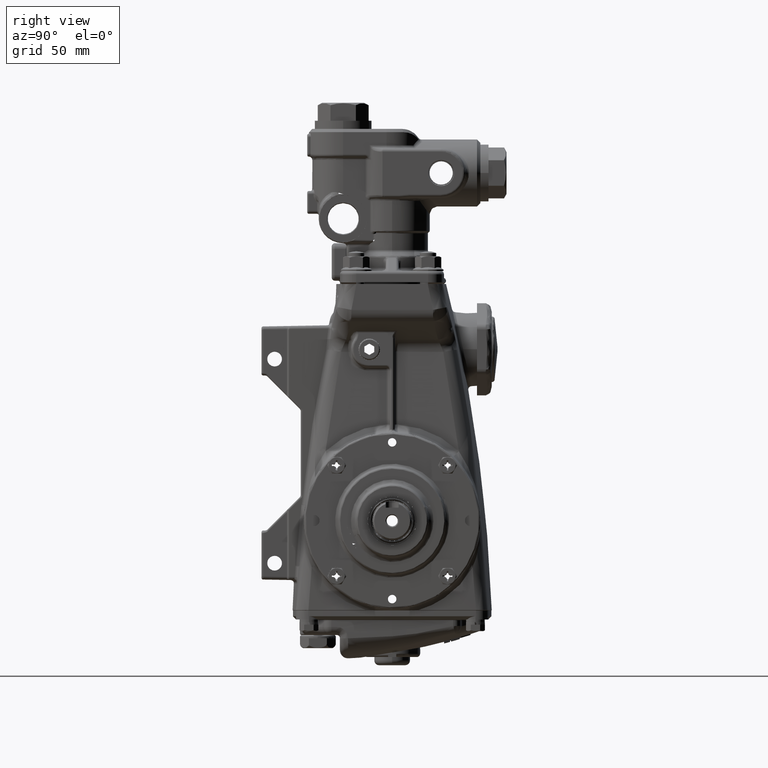
[diagram: clean part render]
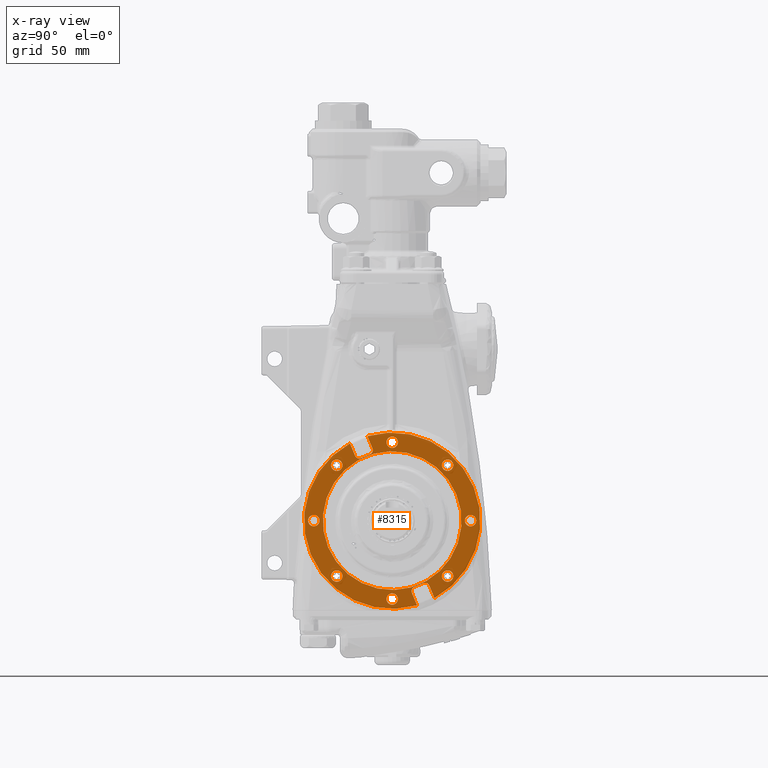
[diagram: x-ray — body ghosted, one internal face saturated and labeled with its STEP entity id]
A machine part, right view, then the same camera in x-ray: the body is ghosted and one INTERNAL B-rep face — a face not visible from any outside direction — is saturated and labeled: STEP entity #8315.
In plain terms, the highlighted planar face has unit normal (-1, -0, 0).
Its self-contained STEP definition (entity closure, byte-faithful):
#76 = AXIS2_PLACEMENT_3D ( 'NONE', #26823, #61995, #99371 ) ;
#418 = CARTESIAN_POINT ( 'NONE',  ( -2.805118110236219930, -4.699128350186170779E-16, 3.283016403534582060E-17 ) ) ;
#1034 = CIRCLE ( 'NONE', #17643, 0.1377952755905511584 ) ;
#1228 = EDGE_CURVE ( 'NONE', #30386, #24798, #57332, .T. ) ;
#1664 = DIRECTION ( 'NONE',  ( -1.000000000000000000, -1.023738023459405289E-19, 1.195813028092454051E-21 ) ) ;
#2211 = CARTESIAN_POINT ( 'NONE',  ( -2.805118110236220375, -0.4695174555425918883, 1.729317158583782765 ) ) ;
#3284 = CARTESIAN_POINT ( 'NONE',  ( -2.805118110236219930, -4.699128350186170779E-16, 3.283016403534582060E-17 ) ) ;
#3954 = EDGE_CURVE ( 'NONE', #73578, #34390, #35332, .T. ) ;
#4205 = CARTESIAN_POINT ( 'NONE',  ( -2.805118110236219930, -4.699128350186170779E-16, 3.283016403534582060E-17 ) ) ;
#4228 = ORIENTED_EDGE ( 'NONE', *, *, #12264, .F. ) ;
#4252 = DIRECTION ( 'NONE',  ( -1.000000000000000000, -1.023738023459405289E-19, 1.195813028092454051E-21 ) ) ;
#4742 = CARTESIAN_POINT ( 'NONE',  ( -2.805118110236219930, -0.8509644954599541178, 1.458608276395371162 ) ) ;
#4855 = CIRCLE ( 'NONE', #10363, 0.1377952755905512694 ) ;
#5008 = ORIENTED_EDGE ( 'NONE', *, *, #18426, .F. ) ;
#5486 = CIRCLE ( 'NONE', #114032, 0.1377952755905511584 ) ;
#5787 = CARTESIAN_POINT ( 'NONE',  ( -2.805118110236220375, 0.8296874386278397795, -1.505352173698807805 ) ) ;
#6558 = DIRECTION ( 'NONE',  ( 9.412344281871276095E-20, -0.9238795325112836299, -0.3826834323650974423 ) ) ;
#6685 = FACE_BOUND ( 'NONE', #80089, .T. ) ;
#6749 = VERTEX_POINT ( 'NONE', #102297 ) ;
#6900 = CARTESIAN_POINT ( 'NONE',  ( -2.805118110236219930, 0.8776907401672514597, -1.537780332096945868 ) ) ;
#6964 = ORIENTED_EDGE ( 'NONE', *, *, #101406, .T. ) ;
#7580 = AXIS2_PLACEMENT_3D ( 'NONE', #96702, #44285, #71386 ) ;
#7652 = VERTEX_POINT ( 'NONE', #67358 ) ;
#8008 = LINE ( 'NONE', #112291, #19808 ) ;
#8315 = ADVANCED_FACE ( 'NONE', ( #109852, #76429, #92032, #6685, #101231, #22312, #30975, #75876, #40157, #33236 ), #32090, .F. ) ;
#8430 = CARTESIAN_POINT ( 'NONE',  ( -2.805118110236219930, -4.699128350186170779E-16, 3.283016403534582060E-17 ) ) ;
#8641 = CARTESIAN_POINT ( 'NONE',  ( -2.805118110236219930, -0.8506937508150099747, 1.514058021169443213 ) ) ;
#9061 = VERTEX_POINT ( 'NONE', #39882 ) ;
#9113 = CARTESIAN_POINT ( 'NONE',  ( -2.805118110236220375, -0.4890338677740139195, 1.631807355856663921 ) ) ;
#9114 = CARTESIAN_POINT ( 'NONE',  ( -2.805118110236219930, 1.336264783344648599, -1.336264783344664808 ) ) ;
#9677 = CARTESIAN_POINT ( 'NONE',  ( -2.805118110236219042, -0.4806717669534372739, 1.644121359283126971 ) ) ;
#9705 = DIRECTION ( 'NONE',  ( 0.000000000000000000, -0.9238795325112835188, -0.3826834323650973868 ) ) ;
#9781 = CARTESIAN_POINT ( 'NONE',  ( -2.805118110236220375, -0.8776907401672231490, 1.537780332096875702 ) ) ;
#10194 = CIRCLE ( 'NONE', #109545, 0.1377952755905513804 ) ;
#10363 = AXIS2_PLACEMENT_3D ( 'NONE', #48735, #76929, #24496 ) ;
#10601 = ORIENTED_EDGE ( 'NONE', *, *, #1228, .T. ) ;
#11334 = DIRECTION ( 'NONE',  ( -1.000000000000000000, -1.023738023459405289E-19, 1.195813028092454051E-21 ) ) ;
#11618 = VERTEX_POINT ( 'NONE', #82615 ) ;
#11707 = EDGE_LOOP ( 'NONE', ( #47821, #40249 ) ) ;
#11790 = VERTEX_POINT ( 'NONE', #14581 ) ;
#12011 = CARTESIAN_POINT ( 'NONE',  ( -2.805118110236219930, -0.1273062347948481776, -1.942495748554246005 ) ) ;
#12264 = EDGE_CURVE ( 'NONE', #11790, #19968, #98026, .T. ) ;
#12538 = EDGE_CURVE ( 'NONE', #87113, #99115, #98783, .T. ) ;
#12687 = DIRECTION ( 'NONE',  ( -1.000000000000000000, -1.023738023459405289E-19, 1.195813028092454051E-21 ) ) ;
#12728 = VERTEX_POINT ( 'NONE', #110660 ) ;
#13045 = CARTESIAN_POINT ( 'NONE',  ( -2.805118110236219930, 0.5187481896733258102, -1.606154746468869465 ) ) ;
#13066 = CARTESIAN_POINT ( 'NONE',  ( -2.805118110236219930, -0.6403167667526241669, 1.545861422509037464 ) ) ;
#13393 = DIRECTION ( 'NONE',  ( -1.000000000000000000, -1.023738023459405289E-19, 1.195813028092454051E-21 ) ) ;
#14175 = CARTESIAN_POINT ( 'NONE',  ( -2.805118110236220375, 0.4719659194826888449, -1.665127671470701509 ) ) ;
#14335 = EDGE_CURVE ( 'NONE', #63931, #60687, #56573, .T. ) ;
#14434 = AXIS2_PLACEMENT_3D ( 'NONE', #81505, #4252, #48076 ) ;
#14550 = ORIENTED_EDGE ( 'NONE', *, *, #76334, .T. ) ;
#14581 = CARTESIAN_POINT ( 'NONE',  ( -2.805118110236219930, -0.8961633260542570811, 1.567727906219538614 ) ) ;
#14956 = ORIENTED_EDGE ( 'NONE', *, *, #110156, .F. ) ;
#14979 = CARTESIAN_POINT ( 'NONE',  ( -2.805118110236219930, 0.8506937508156872108, -1.514058021169602863 ) ) ;
#15297 = CARTESIAN_POINT ( 'NONE',  ( -2.805118110236219930, 0.4669702999025258094, -1.688751730982972932 ) ) ;
#15534 = DIRECTION ( 'NONE',  ( -1.000000000000000000, -1.023738023459405289E-19, 1.195813028092454051E-21 ) ) ;
#16123 = CARTESIAN_POINT ( 'NONE',  ( -2.805118110236219930, -1.336264783344660145, 1.336264783344654816 ) ) ;
#17166 = DIRECTION ( 'NONE',  ( -1.000000000000000000, -1.023738023459405289E-19, 1.195813028092454051E-21 ) ) ;
#17507 = VERTEX_POINT ( 'NONE', #110497 ) ;
#17643 = AXIS2_PLACEMENT_3D ( 'NONE', #25857, #17166, #97821 ) ;
#17766 = CARTESIAN_POINT ( 'NONE',  ( -2.805118110236219930, -0.5043940778807776137, 1.617124369931361105 ) ) ;
#17838 = DIRECTION ( 'NONE',  ( 0.000000000000000000, -0.9238795325112837409, -0.3826834323650968872 ) ) ;
#17876 = CARTESIAN_POINT ( 'NONE',  ( -2.805118110236219042, -0.8742140909625280010, 1.533989188407719917 ) ) ;
#18344 = CARTESIAN_POINT ( 'NONE',  ( -2.805118110236219930, -0.4669702999025092116, 1.688751730982912092 ) ) ;
#18426 = EDGE_CURVE ( 'NONE', #17507, #79052, #103412, .T. ) ;
#18675 = AXIS2_PLACEMENT_3D ( 'NONE', #63278, #11334, #98934 ) ;
#19808 = VECTOR ( 'NONE', #33416, 39.37007874015747433 ) ;
#19924 = VERTEX_POINT ( 'NONE', #33893 ) ;
#19968 = VERTEX_POINT ( 'NONE', #82607 ) ;
#20590 = DIRECTION ( 'NONE',  ( 0.000000000000000000, -0.9238795325112836299, -0.3826834323650974978 ) ) ;
#20775 = EDGE_CURVE ( 'NONE', #21516, #9061, #83208, .T. ) ;
#20943 = ORIENTED_EDGE ( 'NONE', *, *, #104102, .F. ) ;
#21516 = VERTEX_POINT ( 'NONE', #57092 ) ;
#22120 = CIRCLE ( 'NONE', #79184, 1.673228346456692828 ) ;
#22290 = CARTESIAN_POINT ( 'NONE',  ( -2.805118110236219930, 0.4695174555425659646, -1.729317158583723257 ) ) ;
#22312 = FACE_BOUND ( 'NONE', #106017, .T. ) ;
#22749 = CARTESIAN_POINT ( 'NONE',  ( -2.805118110236219930, 0.6434612818275625701, -1.553452953450042529 ) ) ;
#22832 = DIRECTION ( 'NONE',  ( 0.000000000000000000, -0.9238795325112835188, -0.3826834323650973868 ) ) ;
#23091 = CARTESIAN_POINT ( 'NONE',  ( -2.805118110236220375, 0.8742140909625282230, -1.533989188407728577 ) ) ;
#23640 = EDGE_CURVE ( 'NONE', #79052, #19924, #45204, .T. ) ;
#23671 = CARTESIAN_POINT ( 'NONE',  ( -2.805118110236220375, 0.8815869334855530592, -1.542408522566362628 ) ) ;
#23879 = DIRECTION ( 'NONE',  ( -1.000000000000000000, -1.023738023459405289E-19, 1.195813028092454051E-21 ) ) ;
#23952 = CIRCLE ( 'NONE', #88331, 2.125984251968504601 ) ;
#24119 = DIRECTION ( 'NONE',  ( 0.000000000000000000, -0.9238795325112836299, -0.3826834323650974978 ) ) ;
#24496 = DIRECTION ( 'NONE',  ( 0.000000000000000000, -0.9238795325112840739, -0.3826834323650966097 ) ) ;
#24558 = CARTESIAN_POINT ( 'NONE',  ( -2.805118110236220375, 0.5278896200383910164, -1.601324303189115339 ) ) ;
#24798 = VERTEX_POINT ( 'NONE', #59530 ) ;
#25072 = CARTESIAN_POINT ( 'NONE',  ( -2.805118110236219930, -0.4296690380452943270, 1.633114568622703988 ) ) ;
#25276 = EDGE_LOOP ( 'NONE', ( #74635, #90684, #66557, #5008, #106519, #30385, #4228, #45548, #42795, #14956, #20943, #87473, #59831, #48297 ) ) ;
#25512 = CIRCLE ( 'NONE', #14434, 0.1377952755905511584 ) ;
#25857 = CARTESIAN_POINT ( 'NONE',  ( -2.805118110236219930, 1.373569673203555156E-14, -1.889763779527559473 ) ) ;
#25990 = CARTESIAN_POINT ( 'NONE',  ( -2.805118110236219930, -0.8886603636297760733, 1.552134443889571891 ) ) ;
#26156 = CIRCLE ( 'NONE', #90551, 0.1377952755905514637 ) ;
#26351 = DIRECTION ( 'NONE',  ( 0.000000000000000000, -0.9238795325112835188, -0.3826834323650973868 ) ) ;
#26454 = CARTESIAN_POINT ( 'NONE',  ( -2.805118110236219042, -0.5090222683501749446, 1.613228176613066278 ) ) ;
#26683 = AXIS2_PLACEMENT_3D ( 'NONE', #13066, #111540, #41862 ) ;
#26823 = CARTESIAN_POINT ( 'NONE',  ( -2.805118110236219930, -3.333204353354039662E-16, 1.889763779527559251 ) ) ;
#27711 = CARTESIAN_POINT ( 'NONE',  ( -2.805118110236219930, -0.7948014043765196934, 1.499884881165633788 ) ) ;
#28160 = EDGE_CURVE ( 'NONE', #60687, #21516, #50409, .T. ) ;
#28883 = VECTOR ( 'NONE', #6558, 39.37007874015747433 ) ;
#29276 = DIRECTION ( 'NONE',  ( 1.000000000000000000, 1.023738023459405289E-19, -1.195813028092454051E-21 ) ) ;
#29476 = CARTESIAN_POINT ( 'NONE',  ( -2.805118110236219930, 1.336264783344659479, 1.336264783344654150 ) ) ;
#29632 = DIRECTION ( 'NONE',  ( 0.000000000000000000, -0.9238795325112835188, -0.3826834323650973868 ) ) ;
#30385 = ORIENTED_EDGE ( 'NONE', *, *, #101385, .F. ) ;
#30386 = VERTEX_POINT ( 'NONE', #86034 ) ;
#30493 = VECTOR ( 'NONE', #54857, 39.37007874015747433 ) ;
#30591 = CARTESIAN_POINT ( 'NONE',  ( -2.805118110236219930, -0.6434612818275634583, 1.553452953450042529 ) ) ;
#30975 = FACE_BOUND ( 'NONE', #40713, .T. ) ;
#31608 = VERTEX_POINT ( 'NONE', #48847 ) ;
#31754 = CARTESIAN_POINT ( 'NONE',  ( -2.805118110236219930, 0.7525809116517298003, -1.508254122855739787 ) ) ;
#32074 = CARTESIAN_POINT ( 'NONE',  ( -2.805118110236220375, 0.5024608755778985358, -1.618871198120541699 ) ) ;
#32078 = ORIENTED_EDGE ( 'NONE', *, *, #63713, .T. ) ;
#32090 = PLANE ( 'NONE',  #26683 ) ;
#32198 = VERTEX_POINT ( 'NONE', #100994 ) ;
#33216 = CARTESIAN_POINT ( 'NONE',  ( -2.805118110236220819, 0.4890338677738066964, -1.631807355857004538 ) ) ;
#33236 = FACE_BOUND ( 'NONE', #11707, .T. ) ;
#33416 = DIRECTION ( 'NONE',  ( -4.028154524737554580E-20, 0.3826834323650974423, -0.9238795325112836299 ) ) ;
#33537 = CARTESIAN_POINT ( 'NONE',  ( -2.805118110236219930, -2.017070014322422278, -0.05273196902669377573 ) ) ;
#33893 = CARTESIAN_POINT ( 'NONE',  ( -2.805118110236219930, 1.964153336835012365, 0.8135789506974515639 ) ) ;
#33950 = DIRECTION ( 'NONE',  ( 0.000000000000000000, -0.9238795325112840739, -0.3826834323650966097 ) ) ;
#34390 = VERTEX_POINT ( 'NONE', #113984 ) ;
#34894 = AXIS2_PLACEMENT_3D ( 'NONE', #103362, #44009, #67695 ) ;
#35032 = DIRECTION ( 'NONE',  ( 0.000000000000000000, -0.9238795325112837409, -0.3826834323650970537 ) ) ;
#35332 = CIRCLE ( 'NONE', #18675, 0.1377952755905514637 ) ;
#37385 = CARTESIAN_POINT ( 'NONE',  ( -2.805118110236219930, -3.333204353354039662E-16, 1.889763779527559251 ) ) ;
#37745 = VERTEX_POINT ( 'NONE', #98246 ) ;
#38169 = VERTEX_POINT ( 'NONE', #69960 ) ;
#38908 = VECTOR ( 'NONE', #47784, 39.37007874015747433 ) ;
#39562 = CARTESIAN_POINT ( 'NONE',  ( -2.805118110236219930, 0.4664986269494769688, -1.700013705722150492 ) ) ;
#39766 = LINE ( 'NONE', #30591, #30493 ) ;
#39882 = CARTESIAN_POINT ( 'NONE',  ( -2.805118110236219930, 0.4748678686395962356, -1.742234198446871662 ) ) ;
#40157 = FACE_BOUND ( 'NONE', #101342, .T. ) ;
#40180 = VERTEX_POINT ( 'NONE', #70253 ) ;
#40249 = ORIENTED_EDGE ( 'NONE', *, *, #42715, .T. ) ;
#40713 = EDGE_LOOP ( 'NONE', ( #14550, #41854 ) ) ;
#40823 = CARTESIAN_POINT ( 'NONE',  ( -2.805118110236219930, 0.8961633260542561930, -1.567727906219538614 ) ) ;
#40953 = CARTESIAN_POINT ( 'NONE',  ( -2.805118110236220819, 0.8189628643274171615, -1.502131772988054559 ) ) ;
#41854 = ORIENTED_EDGE ( 'NONE', *, *, #110375, .T. ) ;
#41862 = DIRECTION ( 'NONE',  ( 9.412344281871274891E-20, -0.9238795325112836299, -0.3826834323650973868 ) ) ;
#41993 = DIRECTION ( 'NONE',  ( -1.000000000000000000, -1.023738023459405289E-19, 1.195813028092454051E-21 ) ) ;
#42306 = DIRECTION ( 'NONE',  ( 0.000000000000000000, -0.9238795325112834078, -0.3826834323650977754 ) ) ;
#42653 = CARTESIAN_POINT ( 'NONE',  ( -2.805118110236219930, 0.7995167660442737967, -1.499964423507209821 ) ) ;
#42715 = EDGE_CURVE ( 'NONE', #61478, #91607, #47824, .T. ) ;
#42795 = ORIENTED_EDGE ( 'NONE', *, *, #100629, .F. ) ;
#42858 = CARTESIAN_POINT ( 'NONE',  ( -2.805118110236219930, 1.762457544732696890, -0.05273196902669405328 ) ) ;
#42926 = ORIENTED_EDGE ( 'NONE', *, *, #112403, .T. ) ;
#43119 = CARTESIAN_POINT ( 'NONE',  ( -2.805118110236219930, -1.208958548549788015, -1.283532814317977389 ) ) ;
#43142 = AXIS2_PLACEMENT_3D ( 'NONE', #418, #103024, #24119 ) ;
#43256 = CARTESIAN_POINT ( 'NONE',  ( -2.805118110236220819, -0.7789395051854984819, 1.500119872843784785 ) ) ;
#43825 = CARTESIAN_POINT ( 'NONE',  ( -2.805118110236219930, -0.7525809116517309105, 1.508254122855739787 ) ) ;
#44009 = DIRECTION ( 'NONE',  ( -1.000000000000000000, -1.023738023459405289E-19, 1.195813028092454051E-21 ) ) ;
#44285 = DIRECTION ( 'NONE',  ( -1.000000000000000000, -1.023738023459405289E-19, 1.195813028092454051E-21 ) ) ;
#44290 = CARTESIAN_POINT ( 'NONE',  ( -2.805118110236219930, -0.4667336186277799559, 1.715875604913436714 ) ) ;
#44393 = CARTESIAN_POINT ( 'NONE',  ( -2.805118110236219930, -0.8189628643280113529, 1.502131772988194003 ) ) ;
#44850 = CARTESIAN_POINT ( 'NONE',  ( -2.805118110236220375, -0.5011832535757023699, 1.620052868258347267 ) ) ;
#44954 = CARTESIAN_POINT ( 'NONE',  ( -2.805118110236220375, -0.8296874386281798408, 1.505352173698887519 ) ) ;
#45204 = CIRCLE ( 'NONE', #65478, 2.125984251968504601 ) ;
#45231 = CARTESIAN_POINT ( 'NONE',  ( -2.805118110236219930, -1.463571018139512070, -1.388996752371350896 ) ) ;
#45548 = ORIENTED_EDGE ( 'NONE', *, *, #72145, .F. ) ;
#46037 = CARTESIAN_POINT ( 'NONE',  ( -2.805118110236219930, -0.5006029341915807507, 1.620601019136075571 ) ) ;
#47544 = EDGE_CURVE ( 'NONE', #52811, #63931, #81760, .T. ) ;
#47784 = DIRECTION ( 'NONE',  ( 4.028154524737554580E-20, -0.3826834323650974423, 0.9238795325112836299 ) ) ;
#47821 = ORIENTED_EDGE ( 'NONE', *, *, #49642, .T. ) ;
#47824 = CIRCLE ( 'NONE', #34894, 0.1377952755905511584 ) ;
#47980 = CIRCLE ( 'NONE', #76, 0.1377952755905513804 ) ;
#48076 = DIRECTION ( 'NONE',  ( 0.000000000000000000, -0.9238795325112837409, -0.3826834323650968872 ) ) ;
#48297 = ORIENTED_EDGE ( 'NONE', *, *, #14335, .F. ) ;
#48735 = CARTESIAN_POINT ( 'NONE',  ( -2.805118110236219930, 1.336264783344648599, -1.336264783344664808 ) ) ;
#48782 = ORIENTED_EDGE ( 'NONE', *, *, #113288, .T. ) ;
#48795 = CARTESIAN_POINT ( 'NONE',  ( -2.805118110236219042, 0.4665027790993741541, -1.701036658218487485 ) ) ;
#48847 = CARTESIAN_POINT ( 'NONE',  ( -2.805118110236219930, 1.463571018139510294, -1.283532814317978055 ) ) ;
#49053 = CARTESIAN_POINT ( 'NONE',  ( -2.805118110236220819, 0.8630077542418994607, -1.522420121990076147 ) ) ;
#49083 = CIRCLE ( 'NONE', #81937, 2.125984251968504601 ) ;
#49642 = EDGE_CURVE ( 'NONE', #91607, #61478, #25512, .T. ) ;
#49947 = CARTESIAN_POINT ( 'NONE',  ( -2.805118110236219042, 0.4687455187719540839, -1.675852245771079829 ) ) ;
#50094 = CARTESIAN_POINT ( 'NONE',  ( -2.805118110236219930, -1.889763779527559917, -7.069974619491738436E-15 ) ) ;
#50186 = CARTESIAN_POINT ( 'NONE',  ( -2.805118110236219930, 0.8060633791155500383, -1.500356554118636776 ) ) ;
#50409 = LINE ( 'NONE', #22749, #28883 ) ;
#50751 = DIRECTION ( 'NONE',  ( 0.000000000000000000, -0.9238795325112837409, -0.3826834323650968872 ) ) ;
#51925 = ORIENTED_EDGE ( 'NONE', *, *, #102819, .T. ) ;
#52395 = CARTESIAN_POINT ( 'NONE',  ( -2.805118110236219930, -0.5343416520033961170, 1.598651784044345270 ) ) ;
#52811 = VERTEX_POINT ( 'NONE', #104143 ) ;
#52922 = CARTESIAN_POINT ( 'NONE',  ( -2.805118110236219930, 1.889763779527559251, -7.343159418858164167E-15 ) ) ;
#53071 = B_SPLINE_CURVE_WITH_KNOTS ( 'NONE', 3,
 ( #52395, #97280, #79983, #26454, #17766, #105923, #44850, #46037, #9113, #9677, #63919, #61629, #18344, #88636, #107641, #105363, #98413, #44290, #2211, #70799 ),
 .UNSPECIFIED., .F., .F.,
 ( 4, 1, 1, 1, 2, 2, 2, 1, 1, 1, 2, 2, 4 ),
 ( -1.000000000000000000, -0.8749999999999982236, -0.8124999999999987788, -0.7812499999999974465, -0.7656249999999963363, -0.7499999999999952260, -0.4999999999999876765, -0.3749999999999856781, -0.3124999999999847899, -0.2812499999999866773, -0.2656249999999898970, -0.2499999999999932276, -0.000000000000000000 ),
 .UNSPECIFIED. ) ;
#53083 = CARTESIAN_POINT ( 'NONE',  ( -2.805118110236220819, -0.8630077542419138936, 1.522420121990202491 ) ) ;
#53292 = ORIENTED_EDGE ( 'NONE', *, *, #82590, .F. ) ;
#54234 = CARTESIAN_POINT ( 'NONE',  ( -2.805118110236219930, -0.8961633260542570811, 1.567727906219538614 ) ) ;
#54857 = DIRECTION ( 'NONE',  ( -9.412344281871276095E-20, 0.9238795325112836299, 0.3826834323650974423 ) ) ;
#56125 = CIRCLE ( 'NONE', #43142, 1.673228346456692828 ) ;
#56335 = DIRECTION ( 'NONE',  ( -1.000000000000000000, -1.023738023459405289E-19, 1.195813028092454051E-21 ) ) ;
#56573 = B_SPLINE_CURVE_WITH_KNOTS ( 'NONE', 3,
 ( #77225, #86403, #102585, #23671, #6900, #69174, #58860, #23091, #49053, #14979, #5787, #40953, #50186, #42653, #102007, #77785, #112880, #104287, #110643, #31754 ),
 .UNSPECIFIED., .F., .F.,
 ( 4, 1, 1, 1, 2, 2, 2, 1, 1, 1, 2, 2, 4 ),
 ( -1.000000000000000000, -0.8749999999999953371, -0.8124999999999936717, -0.7812499999999947820, -0.7656249999999972244, -0.7499999999999995559, -0.5000000000000022204, -0.3750000000000036637, -0.3125000000000043299, -0.2812500000000033307, -0.2656250000000027756, -0.2500000000000023315, -0.000000000000000000 ),
 .UNSPECIFIED. ) ;
#57092 = CARTESIAN_POINT ( 'NONE',  ( -2.805118110236219930, 0.5343416520033950068, -1.598651784044345270 ) ) ;
#57289 = EDGE_LOOP ( 'NONE', ( #97914, #62511 ) ) ;
#57332 = CIRCLE ( 'NONE', #7580, 0.1377952755905513804 ) ;
#57482 = CARTESIAN_POINT ( 'NONE',  ( -2.805118110236219930, 0.5343416520033950068, -1.598651784044345270 ) ) ;
#57991 = EDGE_LOOP ( 'NONE', ( #32078, #87441 ) ) ;
#58860 = CARTESIAN_POINT ( 'NONE',  ( -2.805118110236219930, 0.8747622418402573041, -1.534569507791852638 ) ) ;
#59530 = CARTESIAN_POINT ( 'NONE',  ( -2.805118110236219930, 1.463571018139521396, 1.388996752371341126 ) ) ;
#59676 = DIRECTION ( 'NONE',  ( 4.028154524737554580E-20, -0.3826834323650974423, 0.9238795325112836299 ) ) ;
#59831 = ORIENTED_EDGE ( 'NONE', *, *, #28160, .F. ) ;
#59858 = CARTESIAN_POINT ( 'NONE',  ( -2.805118110236219930, 0.7525809116517298003, -1.508254122855739787 ) ) ;
#60687 = VERTEX_POINT ( 'NONE', #59858 ) ;
#61478 = VERTEX_POINT ( 'NONE', #43119 ) ;
#61618 = EDGE_CURVE ( 'NONE', #108572, #38169, #1034, .T. ) ;
#61629 = CARTESIAN_POINT ( 'NONE',  ( -2.805118110236220375, -0.4687455187719316574, 1.675852245770998783 ) ) ;
#61995 = DIRECTION ( 'NONE',  ( -1.000000000000000000, -1.023738023459405289E-19, 1.195813028092454051E-21 ) ) ;
#62511 = ORIENTED_EDGE ( 'NONE', *, *, #61618, .T. ) ;
#63278 = CARTESIAN_POINT ( 'NONE',  ( -2.805118110236219930, 1.889763779527559251, -7.343159418858164167E-15 ) ) ;
#63500 = DIRECTION ( 'NONE',  ( 0.000000000000000000, -0.9238795325112832968, -0.3826834323650982750 ) ) ;
#63713 = EDGE_CURVE ( 'NONE', #6749, #83142, #104342, .T. ) ;
#63919 = CARTESIAN_POINT ( 'NONE',  ( -2.805118110236220819, -0.4719659194826761883, 1.665127671470655546 ) ) ;
#63931 = VERTEX_POINT ( 'NONE', #40823 ) ;
#64506 = VERTEX_POINT ( 'NONE', #79218 ) ;
#65478 = AXIS2_PLACEMENT_3D ( 'NONE', #8430, #96025, #26351 ) ;
#66110 = CARTESIAN_POINT ( 'NONE',  ( -2.805118110236220819, 0.4667336186277545318, -1.715875604913377650 ) ) ;
#66220 = CARTESIAN_POINT ( 'NONE',  ( -2.805118110236219930, -0.4296690380452943270, 1.633114568622703988 ) ) ;
#66557 = ORIENTED_EDGE ( 'NONE', *, *, #23640, .F. ) ;
#67358 = CARTESIAN_POINT ( 'NONE',  ( -2.805118110236219930, 0.5982389119978015479, -2.040078244526362994 ) ) ;
#67370 = ORIENTED_EDGE ( 'NONE', *, *, #12538, .T. ) ;
#67620 = AXIS2_PLACEMENT_3D ( 'NONE', #16123, #95633, #17838 ) ;
#67695 = DIRECTION ( 'NONE',  ( 0.000000000000000000, -0.9238795325112837409, -0.3826834323650968872 ) ) ;
#67793 = CIRCLE ( 'NONE', #75167, 2.125984251968504601 ) ;
#69174 = CARTESIAN_POINT ( 'NONE',  ( -2.805118110236219930, 0.8759439119780879635, -1.535847129794110977 ) ) ;
#69552 = EDGE_LOOP ( 'NONE', ( #84920, #103748 ) ) ;
#69787 = CARTESIAN_POINT ( 'NONE',  ( -2.805118110236219042, -0.8747622418402489775, 1.534569507791830212 ) ) ;
#69960 = CARTESIAN_POINT ( 'NONE',  ( -2.805118110236219930, 0.1273062347948756279, -1.837031810500872497 ) ) ;
#70253 = CARTESIAN_POINT ( 'NONE',  ( -2.805118110236219930, -0.5343416520033961170, 1.598651784044345270 ) ) ;
#70799 = CARTESIAN_POINT ( 'NONE',  ( -2.805118110236219930, -0.4748678686395972348, 1.742234198446871662 ) ) ;
#71264 = EDGE_CURVE ( 'NONE', #40180, #17507, #53071, .T. ) ;
#71386 = DIRECTION ( 'NONE',  ( 0.000000000000000000, -0.9238795325112832968, -0.3826834323650982750 ) ) ;
#71488 = CARTESIAN_POINT ( 'NONE',  ( -2.805118110236219930, -0.7937784518800981015, 1.499889033315524367 ) ) ;
#71967 = DIRECTION ( 'NONE',  ( 0.000000000000000000, -0.9238795325112832968, -0.3826834323650982750 ) ) ;
#72053 = DIRECTION ( 'NONE',  ( 0.000000000000000000, -0.9238795325112837409, -0.3826834323650968872 ) ) ;
#72145 = EDGE_CURVE ( 'NONE', #11618, #11790, #8008, .T. ) ;
#72238 = CARTESIAN_POINT ( 'NONE',  ( -2.805118110236219930, -0.5982389119978025471, 2.040078244526362994 ) ) ;
#72246 = AXIS2_PLACEMENT_3D ( 'NONE', #9114, #96709, #33950 ) ;
#72643 = VERTEX_POINT ( 'NONE', #101143 ) ;
#72980 = EDGE_CURVE ( 'NONE', #19924, #52811, #67793, .T. ) ;
#73578 = VERTEX_POINT ( 'NONE', #42858 ) ;
#73934 = DIRECTION ( 'NONE',  ( -4.028154524737554580E-20, 0.3826834323650974423, -0.9238795325112836299 ) ) ;
#73964 = CIRCLE ( 'NONE', #112551, 0.1377952755905512139 ) ;
#74635 = ORIENTED_EDGE ( 'NONE', *, *, #47544, .F. ) ;
#75167 = AXIS2_PLACEMENT_3D ( 'NONE', #4205, #13393, #29632 ) ;
#75876 = FACE_BOUND ( 'NONE', #57991, .T. ) ;
#76334 = EDGE_CURVE ( 'NONE', #37745, #64506, #82619, .T. ) ;
#76429 = FACE_OUTER_BOUND ( 'NONE', #25276, .T. ) ;
#76929 = DIRECTION ( 'NONE',  ( -1.000000000000000000, -1.023738023459405289E-19, 1.195813028092454051E-21 ) ) ;
#77225 = CARTESIAN_POINT ( 'NONE',  ( -2.805118110236219930, 0.8961633260542561930, -1.567727906219538614 ) ) ;
#77613 = CIRCLE ( 'NONE', #105178, 0.1377952755905511584 ) ;
#77785 = CARTESIAN_POINT ( 'NONE',  ( -2.805118110236220375, 0.7948014043764374259, -1.499884881165615358 ) ) ;
#78395 = CARTESIAN_POINT ( 'NONE',  ( -2.805118110236219042, -0.7654979515151525415, 1.502903709758596884 ) ) ;
#79052 = VERTEX_POINT ( 'NONE', #72238 ) ;
#79184 = AXIS2_PLACEMENT_3D ( 'NONE', #3284, #29276, #20590 ) ;
#79218 = CARTESIAN_POINT ( 'NONE',  ( -2.805118110236219930, -0.1273062347948623885, 1.837031810500872497 ) ) ;
#79524 = CARTESIAN_POINT ( 'NONE',  ( -2.805118110236219042, -0.7995167660445342550, 1.499964423507270883 ) ) ;
#79983 = CARTESIAN_POINT ( 'NONE',  ( -2.805118110236219042, -0.5187481896735296472, 1.606154746468784422 ) ) ;
#80089 = EDGE_LOOP ( 'NONE', ( #51925, #48782 ) ) ;
#80461 = VECTOR ( 'NONE', #73934, 39.37007874015747433 ) ;
#80654 = DIRECTION ( 'NONE',  ( -1.000000000000000000, -1.023738023459405289E-19, 1.195813028092454051E-21 ) ) ;
#80993 = EDGE_LOOP ( 'NONE', ( #53292, #103599 ) ) ;
#81505 = CARTESIAN_POINT ( 'NONE',  ( -2.805118110236219930, -1.336264783344650153, -1.336264783344664364 ) ) ;
#81760 = LINE ( 'NONE', #66220, #38908 ) ;
#81937 = AXIS2_PLACEMENT_3D ( 'NONE', #88667, #1664, #9705 ) ;
#82153 = EDGE_CURVE ( 'NONE', #38169, #108572, #5486, .T. ) ;
#82590 = EDGE_CURVE ( 'NONE', #12728, #84319, #22120, .T. ) ;
#82607 = CARTESIAN_POINT ( 'NONE',  ( -2.805118110236219930, -0.7525809116517309105, 1.508254122855739787 ) ) ;
#82615 = CARTESIAN_POINT ( 'NONE',  ( -2.805118110236219930, -1.019534369412462338, 1.865571952299030167 ) ) ;
#82619 = CIRCLE ( 'NONE', #112043, 0.1377952755905513804 ) ;
#83142 = VERTEX_POINT ( 'NONE', #95252 ) ;
#83208 = B_SPLINE_CURVE_WITH_KNOTS ( 'NONE', 3,
 ( #57482, #24558, #13045, #101768, #109831, #32074, #92010, #83329, #33216, #93131, #14175, #49947, #15297, #93699, #110961, #39562, #48795, #66110, #22290, #92571 ),
 .UNSPECIFIED., .F., .F.,
 ( 4, 1, 1, 1, 2, 2, 2, 1, 1, 1, 2, 2, 4 ),
 ( -1.000000000000000000, -0.8749999999999970024, -0.8124999999999954481, -0.7812499999999951150, -0.7656249999999945599, -0.7499999999999940048, -0.5000000000000096589, -0.3750000000000175415, -0.3125000000000214273, -0.2812500000000233147, -0.2656250000000220934, -0.2500000000000208722, -0.000000000000000000 ),
 .UNSPECIFIED. ) ;
#83329 = CARTESIAN_POINT ( 'NONE',  ( -2.805118110236220375, 0.5006029341915928521, -1.620601019136054699 ) ) ;
#84319 = VERTEX_POINT ( 'NONE', #97007 ) ;
#84445 = CARTESIAN_POINT ( 'NONE',  ( -2.805118110236219930, -4.699128350186170779E-16, 3.283016403534582060E-17 ) ) ;
#84613 = DIRECTION ( 'NONE',  ( 0.000000000000000000, -0.9238795325112834078, -0.3826834323650977754 ) ) ;
#84920 = ORIENTED_EDGE ( 'NONE', *, *, #87907, .T. ) ;
#86034 = CARTESIAN_POINT ( 'NONE',  ( -2.805118110236219930, 1.208958548549797340, 1.283532814317967397 ) ) ;
#86397 = CARTESIAN_POINT ( 'NONE',  ( -2.805118110236219930, -1.336264783344660145, 1.336264783344654816 ) ) ;
#86403 = CARTESIAN_POINT ( 'NONE',  ( -2.805118110236219930, 0.8934908069095487404, -1.561275874254684615 ) ) ;
#86684 = EDGE_CURVE ( 'NONE', #83142, #6749, #77613, .T. ) ;
#87004 = CARTESIAN_POINT ( 'NONE',  ( -2.805118110236219042, -0.8759439119780710881, 1.535847129794068344 ) ) ;
#87113 = VERTEX_POINT ( 'NONE', #94356 ) ;
#87441 = ORIENTED_EDGE ( 'NONE', *, *, #86684, .T. ) ;
#87473 = ORIENTED_EDGE ( 'NONE', *, *, #20775, .F. ) ;
#87907 = EDGE_CURVE ( 'NONE', #34390, #73578, #26156, .T. ) ;
#88170 = CARTESIAN_POINT ( 'NONE',  ( -2.805118110236220819, -0.7966903167713099698, 1.499902541564481329 ) ) ;
#88331 = AXIS2_PLACEMENT_3D ( 'NONE', #84445, #56335, #22832 ) ;
#88557 = VECTOR ( 'NONE', #59676, 39.37007874015747433 ) ;
#88636 = CARTESIAN_POINT ( 'NONE',  ( -2.805118110236220375, -0.4665781692910762057, 1.695298344054246398 ) ) ;
#88667 = CARTESIAN_POINT ( 'NONE',  ( -2.805118110236219930, -4.699128350186170779E-16, 3.283016403534582060E-17 ) ) ;
#89313 = CARTESIAN_POINT ( 'NONE',  ( -2.805118110236219930, -0.8060633791159961259, 1.500356554118740915 ) ) ;
#89651 = AXIS2_PLACEMENT_3D ( 'NONE', #50094, #41993, #84613 ) ;
#90551 = AXIS2_PLACEMENT_3D ( 'NONE', #52922, #96638, #35032 ) ;
#90684 = ORIENTED_EDGE ( 'NONE', *, *, #72980, .F. ) ;
#91160 = EDGE_CURVE ( 'NONE', #84319, #12728, #56125, .T. ) ;
#91210 = LINE ( 'NONE', #4742, #80461 ) ;
#91607 = VERTEX_POINT ( 'NONE', #45231 ) ;
#92010 = CARTESIAN_POINT ( 'NONE',  ( -2.805118110236219930, 0.5011832535756733931, -1.620052868258358592 ) ) ;
#92032 = FACE_BOUND ( 'NONE', #57289, .T. ) ;
#92571 = CARTESIAN_POINT ( 'NONE',  ( -2.805118110236219930, 0.4748678686395962356, -1.742234198446871662 ) ) ;
#93131 = CARTESIAN_POINT ( 'NONE',  ( -2.805118110236220375, 0.4806717669534095183, -1.644121359283035044 ) ) ;
#93699 = CARTESIAN_POINT ( 'NONE',  ( -2.805118110236219930, 0.4665781692910858647, -1.695298344054284145 ) ) ;
#94356 = CARTESIAN_POINT ( 'NONE',  ( -2.805118110236219930, -1.762457544732698000, 0.05273196902667964120 ) ) ;
#95252 = CARTESIAN_POINT ( 'NONE',  ( -2.805118110236219930, -1.208958548549798229, 1.388996752371341348 ) ) ;
#95633 = DIRECTION ( 'NONE',  ( -1.000000000000000000, -1.023738023459405289E-19, 1.195813028092454051E-21 ) ) ;
#96025 = DIRECTION ( 'NONE',  ( -1.000000000000000000, -1.023738023459405289E-19, 1.195813028092454051E-21 ) ) ;
#96638 = DIRECTION ( 'NONE',  ( -1.000000000000000000, -1.023738023459405289E-19, 1.195813028092454051E-21 ) ) ;
#96702 = CARTESIAN_POINT ( 'NONE',  ( -2.805118110236219930, 1.336264783344659479, 1.336264783344654150 ) ) ;
#96709 = DIRECTION ( 'NONE',  ( -1.000000000000000000, -1.023738023459405289E-19, 1.195813028092454051E-21 ) ) ;
#96809 = CARTESIAN_POINT ( 'NONE',  ( -2.805118110236220375, -0.8934908069095119920, 1.561275874254593354 ) ) ;
#97007 = CARTESIAN_POINT ( 'NONE',  ( -2.805118110236219930, 1.545861422509037020, 0.6403167667526239448 ) ) ;
#97280 = CARTESIAN_POINT ( 'NONE',  ( -2.805118110236219042, -0.5278896200385078119, 1.601324303189066711 ) ) ;
#97821 = DIRECTION ( 'NONE',  ( 0.000000000000000000, -0.9238795325112837409, -0.3826834323650968872 ) ) ;
#97914 = ORIENTED_EDGE ( 'NONE', *, *, #82153, .T. ) ;
#98026 = B_SPLINE_CURVE_WITH_KNOTS ( 'NONE', 3,
 ( #54234, #96809, #25990, #104327, #9781, #87004, #69787, #17876, #53083, #8641, #44954, #44393, #89313, #79524, #88170, #27711, #71488, #43256, #78395, #43825 ),
 .UNSPECIFIED., .F., .F.,
 ( 4, 1, 1, 1, 2, 2, 2, 1, 1, 1, 2, 2, 4 ),
 ( -1.000000000000000000, -0.8749999999999995559, -0.8124999999999964473, -0.7812499999999942268, -0.7656249999999931166, -0.7499999999999920064, -0.5000000000000009992, -0.3750000000000046629, -0.3125000000000065503, -0.2812500000000074385, -0.2656250000000066613, -0.2500000000000059952, -0.000000000000000000 ),
 .UNSPECIFIED. ) ;
#98246 = CARTESIAN_POINT ( 'NONE',  ( -2.805118110236219930, 0.1273062347948616946, 1.942495748554246005 ) ) ;
#98413 = CARTESIAN_POINT ( 'NONE',  ( -2.805118110236219930, -0.4665027790993735435, 1.701036658218483710 ) ) ;
#98783 = CIRCLE ( 'NONE', #89651, 0.1377952755905512139 ) ;
#98934 = DIRECTION ( 'NONE',  ( 0.000000000000000000, -0.9238795325112837409, -0.3826834323650970537 ) ) ;
#99115 = VERTEX_POINT ( 'NONE', #33537 ) ;
#99371 = DIRECTION ( 'NONE',  ( 0.000000000000000000, -0.9238795325112832968, -0.3826834323650982750 ) ) ;
#100629 = EDGE_CURVE ( 'NONE', #32198, #11618, #49083, .T. ) ;
#100994 = CARTESIAN_POINT ( 'NONE',  ( -2.805118110236219930, -1.964153336835013475, -0.8135789506974515639 ) ) ;
#101143 = CARTESIAN_POINT ( 'NONE',  ( -2.805118110236219930, 1.208958548549786460, -1.388996752371351562 ) ) ;
#101231 = FACE_BOUND ( 'NONE', #69552, .T. ) ;
#101342 = EDGE_LOOP ( 'NONE', ( #67370, #42926 ) ) ;
#101385 = EDGE_CURVE ( 'NONE', #19968, #40180, #39766, .T. ) ;
#101406 = EDGE_CURVE ( 'NONE', #24798, #30386, #10194, .T. ) ;
#101768 = CARTESIAN_POINT ( 'NONE',  ( -2.805118110236219042, 0.5090222683500220668, -1.613228176613129783 ) ) ;
#102007 = CARTESIAN_POINT ( 'NONE',  ( -2.805118110236219042, 0.7966903167711530953, -1.499902541564444691 ) ) ;
#102297 = CARTESIAN_POINT ( 'NONE',  ( -2.805118110236219930, -1.463571018139522062, 1.283532814317968285 ) ) ;
#102585 = CARTESIAN_POINT ( 'NONE',  ( -2.805118110236220375, 0.8886603636298414655, -1.552134443889731319 ) ) ;
#102819 = EDGE_CURVE ( 'NONE', #72643, #31608, #4855, .T. ) ;
#103024 = DIRECTION ( 'NONE',  ( 1.000000000000000000, 1.023738023459405289E-19, -1.195813028092454051E-21 ) ) ;
#103352 = CARTESIAN_POINT ( 'NONE',  ( -2.805118110236219930, -1.889763779527559917, -7.069974619491738436E-15 ) ) ;
#103362 = CARTESIAN_POINT ( 'NONE',  ( -2.805118110236219930, -1.336264783344650153, -1.336264783344664364 ) ) ;
#103412 = LINE ( 'NONE', #25072, #88557 ) ;
#103599 = ORIENTED_EDGE ( 'NONE', *, *, #91160, .F. ) ;
#103748 = ORIENTED_EDGE ( 'NONE', *, *, #3954, .T. ) ;
#104102 = EDGE_CURVE ( 'NONE', #9061, #7652, #91210, .T. ) ;
#104143 = CARTESIAN_POINT ( 'NONE',  ( -2.805118110236219930, 1.019534369412461450, -1.865571952299030167 ) ) ;
#104287 = CARTESIAN_POINT ( 'NONE',  ( -2.805118110236219930, 0.7789395051851044638, -1.500119872843947766 ) ) ;
#104327 = CARTESIAN_POINT ( 'NONE',  ( -2.805118110236220375, -0.8815869334855042094, 1.542408522566242057 ) ) ;
#104342 = CIRCLE ( 'NONE', #67620, 0.1377952755905511584 ) ;
#105178 = AXIS2_PLACEMENT_3D ( 'NONE', #86397, #15534, #50751 ) ;
#105363 = CARTESIAN_POINT ( 'NONE',  ( -2.805118110236220375, -0.4664986269494750815, 1.700013705722138946 ) ) ;
#105923 = CARTESIAN_POINT ( 'NONE',  ( -2.805118110236219930, -0.5024608755779531588, 1.618871198120520383 ) ) ;
#106017 = EDGE_LOOP ( 'NONE', ( #10601, #6964 ) ) ;
#106519 = ORIENTED_EDGE ( 'NONE', *, *, #71264, .F. ) ;
#106591 = CARTESIAN_POINT ( 'NONE',  ( -2.805118110236219930, 1.373569673203555156E-14, -1.889763779527559473 ) ) ;
#107641 = CARTESIAN_POINT ( 'NONE',  ( -2.805118110236220819, -0.4665162873483074679, 1.698124793327399962 ) ) ;
#108572 = VERTEX_POINT ( 'NONE', #12011 ) ;
#108763 = DIRECTION ( 'NONE',  ( -1.000000000000000000, -1.023738023459405289E-19, 1.195813028092454051E-21 ) ) ;
#109545 = AXIS2_PLACEMENT_3D ( 'NONE', #29476, #12687, #63500 ) ;
#109831 = CARTESIAN_POINT ( 'NONE',  ( -2.805118110236220375, 0.5043940778806881298, -1.617124369931398853 ) ) ;
#109852 = FACE_BOUND ( 'NONE', #80993, .T. ) ;
#110156 = EDGE_CURVE ( 'NONE', #7652, #32198, #23952, .T. ) ;
#110375 = EDGE_CURVE ( 'NONE', #64506, #37745, #47980, .T. ) ;
#110497 = CARTESIAN_POINT ( 'NONE',  ( -2.805118110236219930, -0.4748678686395972348, 1.742234198446871662 ) ) ;
#110643 = CARTESIAN_POINT ( 'NONE',  ( -2.805118110236220375, 0.7654979515147583014, -1.502903709758759421 ) ) ;
#110660 = CARTESIAN_POINT ( 'NONE',  ( -2.805118110236219930, -1.545861422509038130, -0.6403167667526237228 ) ) ;
#110759 = CIRCLE ( 'NONE', #72246, 0.1377952755905512694 ) ;
#110961 = CARTESIAN_POINT ( 'NONE',  ( -2.805118110236219930, 0.4665162873483126305, -1.698124793327421278 ) ) ;
#111540 = DIRECTION ( 'NONE',  ( -1.000000000000000000, -1.023738023459405168E-19, 1.195813028092460070E-21 ) ) ;
#112043 = AXIS2_PLACEMENT_3D ( 'NONE', #37385, #108763, #71967 ) ;
#112291 = CARTESIAN_POINT ( 'NONE',  ( -2.805118110236219930, -0.8509644954599541178, 1.458608276395371162 ) ) ;
#112403 = EDGE_CURVE ( 'NONE', #99115, #87113, #73964, .T. ) ;
#112551 = AXIS2_PLACEMENT_3D ( 'NONE', #103352, #23879, #42306 ) ;
#112880 = CARTESIAN_POINT ( 'NONE',  ( -2.805118110236220375, 0.7937784518801223044, -1.499889033315515041 ) ) ;
#113288 = EDGE_CURVE ( 'NONE', #31608, #72643, #110759, .T. ) ;
#113984 = CARTESIAN_POINT ( 'NONE',  ( -2.805118110236219930, 2.017070014322421390, 0.05273196902667937058 ) ) ;
#114032 = AXIS2_PLACEMENT_3D ( 'NONE', #106591, #80654, #72053 ) ;